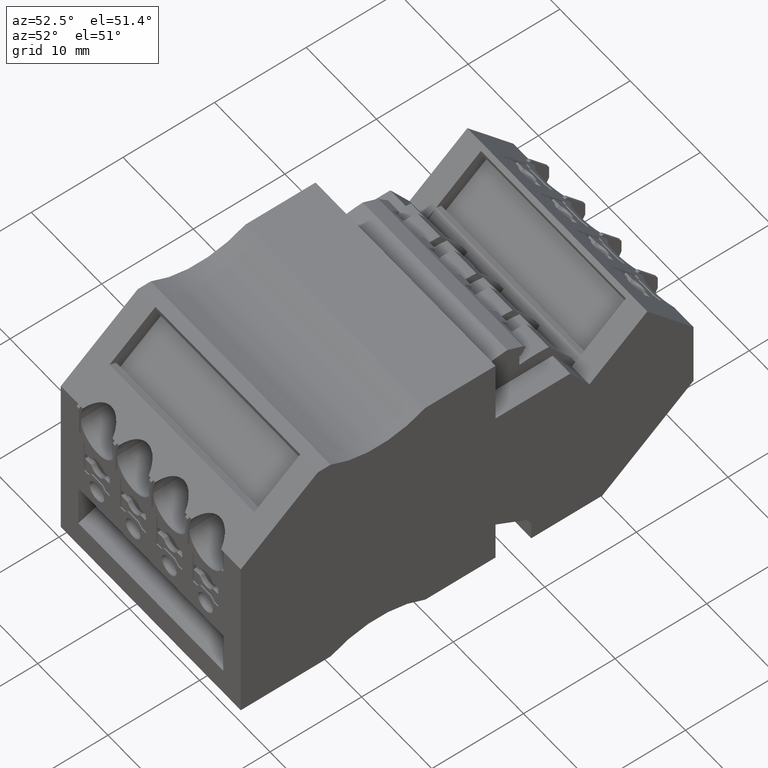
[diagram: clean part render]
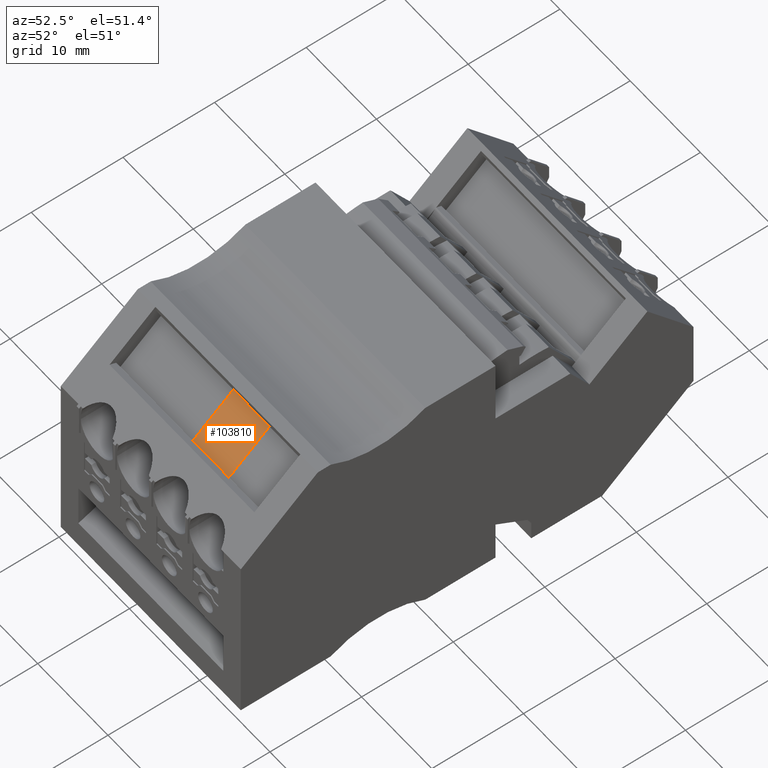
[diagram: same view with one face highlighted and labeled with its STEP entity id]
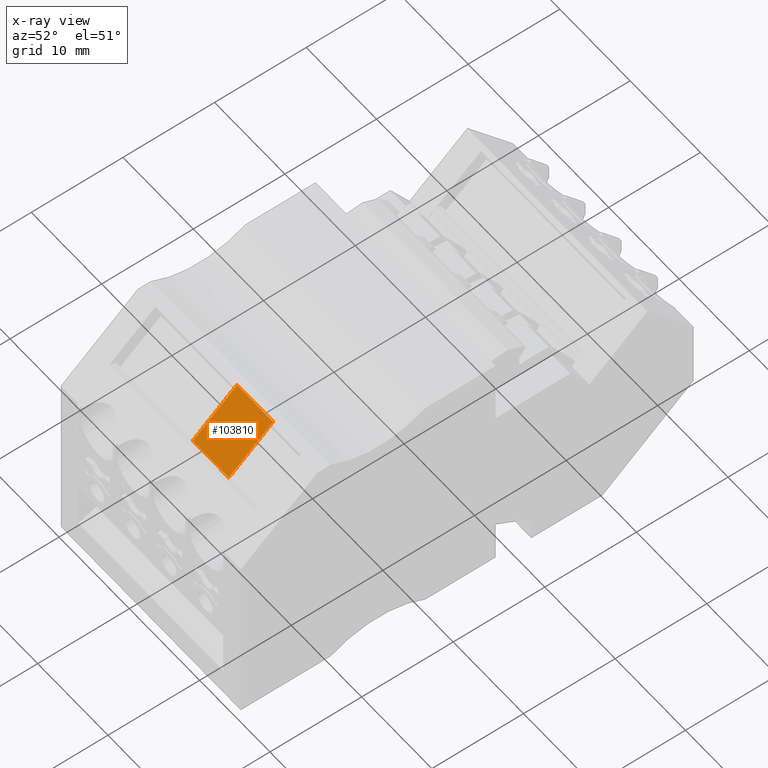
[diagram: x-ray of the same camera — body ghosted, the highlighted face saturated]
A machine part, auxiliary view. The second image highlights one B-rep face of the part: STEP entity #103810.
The next image is the same camera in x-ray: the body ghosted, the highlighted face saturated — about 0% of this face is hidden behind the body in this view.
In plain terms, the highlighted planar face has unit normal (-0, 0.6428, -0.766).
Its self-contained STEP definition (entity closure, byte-faithful):
#52250=CARTESIAN_POINT('',(425.016896212252,692.123078486407,
85.2749975710628));
#52260=DIRECTION('',(1.6669925506053E-10,4.90742847764455E-10,1.));
#52270=VECTOR('',#52260,1.);
#52280=LINE('',#52250,#52270);
#52290=CARTESIAN_POINT('',(425.016896211109,692.123078483043,
78.4199999876233));
#52300=VERTEX_POINT('',#52290);
#73820=CARTESIAN_POINT('',(429.86212731812,696.188710113931,
85.2749975682599));
#73830=DIRECTION('',(1.6669925506053E-10,4.90742847764455E-10,1.));
#73840=VECTOR('',#73830,1.);
#73850=LINE('',#73820,#73840);
#74300=CARTESIAN_POINT('',(425.016896211968,692.12307848557,
83.5699999876233));
#74310=VERTEX_POINT('',#74300);
#74320=EDGE_CURVE('',#52300,#74310,#52280,.T.);
#74500=CARTESIAN_POINT('',(429.86212731812,696.188710113931,
85.2749975682599));
#74510=DIRECTION('',(0.642787609094791,-0.766044443615514,
2.68778616175774E-10));
#74520=DIRECTION('',(-0.766044443615514,-0.642787609094791,
4.43142362006131E-10));
#74530=AXIS2_PLACEMENT_3D('',#74500,#74510,#74520);
#74540=PLANE('',#74530);
#74590=CARTESIAN_POINT('',(419.450735291509,687.452514917467,
83.5699999907981));
#74600=DIRECTION('',(-0.766044443615514,-0.642787609094791,
4.36950297750633E-10));
#74610=VECTOR('',#74600,1.);
#74620=LINE('',#74590,#74610);
#74630=CARTESIAN_POINT('',(429.862127317836,696.188710113095,
83.5699999848595));
#74640=VERTEX_POINT('',#74630);
#74650=EDGE_CURVE('',#74640,#74310,#74620,.T.);
#103670=ORIENTED_EDGE('',*,*,#74320,.T.);
#103680=CARTESIAN_POINT('',(419.450735291259,687.45251491545,
78.4199999907981));
#103690=DIRECTION('',(-0.766044443615514,-0.642787609094791,
4.36950297750633E-10));
#103700=VECTOR('',#103690,1.);
#103710=LINE('',#103680,#103700);
#103720=CARTESIAN_POINT('',(429.862127316978,696.188710110567,
78.4199999848595));
#103730=VERTEX_POINT('',#103720);
#103740=EDGE_CURVE('',#103730,#52300,#103710,.T.);
#103750=ORIENTED_EDGE('',*,*,#103740,.T.);
#103760=EDGE_CURVE('',#103730,#74640,#73850,.T.);
#103770=ORIENTED_EDGE('',*,*,#103760,.F.);
#103780=ORIENTED_EDGE('',*,*,#74650,.F.);
#103790=EDGE_LOOP('',(#103780,#103770,#103750,#103670));
#103800=FACE_OUTER_BOUND('',#103790,.T.);
#103810=ADVANCED_FACE('',(#103800),#74540,.F.);